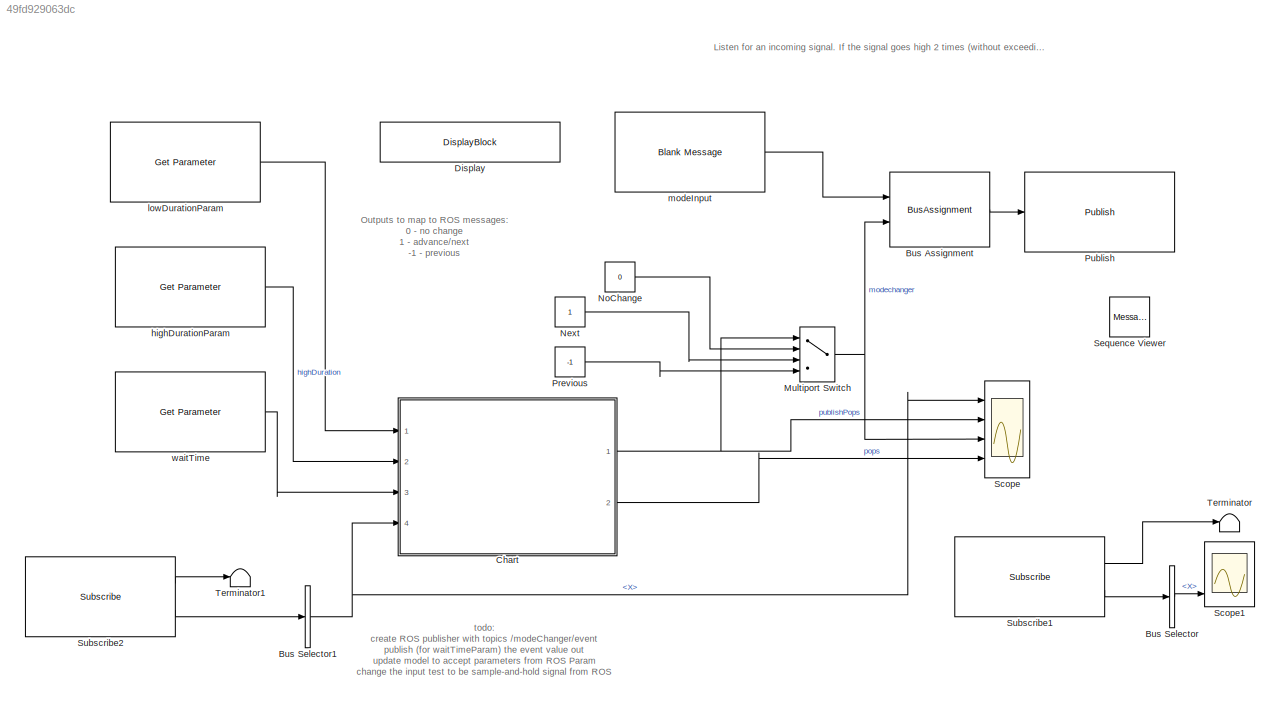
MODEL slx_49fd929063dc
KIND model
CONFIG AbsTol = auto
CONFIG EnableMultiTasking = off
CONFIG FixedStep = 0.01
CONFIG MaxStep = auto
CONFIG MinStep = auto
CONFIG RelTol = 1e-3
CONFIG SampleTimeConstraint = Unconstrained
CONFIG Solver = FixedStepAuto
CONFIG SolverName = FixedStepAuto
CONFIG StartTime = 0.0
CONFIG StopTime = inf
BLOCK [BusAssignment] Bus Assignment
  AssignedSignals = Data
  Ports = [2, 1]
BLOCK [BusSelector] Bus Selector
  Commented = on
  DialogController = Simulink.DDGSource_BusSelector
  OutputSignals = Linear.X
  Ports = [1, 1]
BLOCK [BusSelector] Bus Selector1
  DialogController = Simulink.DDGSource_BusSelector
  OutputSignals = Linear.X
  Ports = [1, 1]
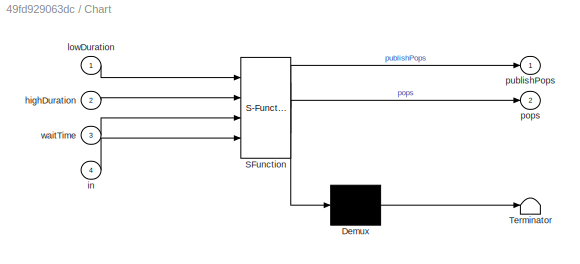
BLOCK [SubSystem] Chart
  ErrorFcn = Stateflow.Translate.translate
  PermitHierarchicalResolution = ExplicitOnly
  Ports = [4, 2]
  RequestExecContextInheritance = off
  SFBlockType = Chart
  TreatAsAtomicUnit = on
BLOCK [Demux] Chart/ Demux 
  Outputs = 1
  Ports = [1, 1]
BLOCK [S-Function] Chart/ SFunction 
  EnableBusSupport = on
  FunctionName = sf_sfun
  PortCounts = [4 3]
  Ports = [4, 3]
  SFcnIsStateOwnerBlock = off
  SFunctionDeploymentMode = off
  Tag = Stateflow S-Function 3
BLOCK [Terminator] Chart/ Terminator 
BLOCK [Inport] Chart/highDuration
  Port = 2
BLOCK [Inport] Chart/in
  Port = 4
BLOCK [Inport] Chart/lowDuration
BLOCK [Outport] Chart/pops
  Port = 2
BLOCK [Outport] Chart/publishPops
BLOCK [Inport] Chart/waitTime
  Port = 3
BLOCK [DisplayBlock] Display
  Commented = on
  Format = short
  LabelPosition = Hide
  Transparency = 1
BLOCK [MultiPortSwitch] Multiport Switch
  DataPortIndices = {0,2,3}
  DataPortOrder = Specify indices
  InputSameDT = off
  Ports = [4, 1]
  SaturateOnIntegerOverflow = off
BLOCK [Constant] Next
  OutDataTypeStr = int8
BLOCK [Constant] NoChange
  OutDataTypeStr = int8
  Value = 0
BLOCK [Constant] Previous
  OutDataTypeStr = int8
  Value = -1
BLOCK [Reference] Publish  REF=robotlib/Publish
  Ports = [1]
  SourceBlock = robotlib/Publish
  SourceProductBaseCode = RR
  SourceType = ROS Publish
BLOCK [Scope] Scope
  Floating = off
  NumInputPorts = 4
  Ports = [4]
  ScopeSpecificationString = Simulink.scopes.TimeScopeBlockCfg('CurrentConfiguration', extmgr.ConfigurationSet(extmgr.Configuration('Core','General UI',true),extmgr.Configuration('Core','Source UI',true),extmgr.Configuration('Sources','WiredSimulink',true,'DataLoggingVariableName','ScopeData1'),extmgr.Configuration('Visuals','Time Domain',true,'SerializedDisplays',{struct('MinYLimReal','-0.125','MaxYLimReal','1.04577','YLabel...<+3447ch>
BLOCK [Scope] Scope1
  Commented = on
  Floating = off
  NumInputPorts = 4
  Ports = [4]
  ScopeSpecificationString = Simulink.scopes.TimeScopeBlockCfg('CurrentConfiguration', extmgr.ConfigurationSet(extmgr.Configuration('Core','General UI',true),extmgr.Configuration('Core','Source UI',true),extmgr.Configuration('Sources','WiredSimulink',true,'DataLoggingVariableName','ScopeData1'),extmgr.Configuration('Visuals','Time Domain',true,'SerializedDisplays',{struct('MinYLimReal','-1.25','MaxYLimReal','1.25','YLabelReal...<+1505ch>
BLOCK [MessageViewer] Sequence Viewer
  History = 1000
  SavedRootId = #
BLOCK [Reference] Subscribe1  REF=robotlib/Subscribe
  Commented = on
  Ports = [0, 2]
  SourceBlock = robotlib/Subscribe
  SourceProductBaseCode = RR
  SourceType = ROS Subscribe
BLOCK [Reference] Subscribe2  REF=robotlib/Subscribe
  Ports = [0, 2]
  SourceBlock = robotlib/Subscribe
  SourceProductBaseCode = RR
  SourceType = ROS Subscribe
BLOCK [Terminator] Terminator
  Commented = on
BLOCK [Terminator] Terminator1
BLOCK [Reference] highDurationParam  REF=robotlib/Get Parameter
  Ports = [0, 1]
  SourceBlock = robotlib/Get Parameter
  SourceProductBaseCode = RR
  SourceType = ROS Get Parameter
BLOCK [Reference] lowDurationParam  REF=robotlib/Get Parameter
  Ports = [0, 1]
  SourceBlock = robotlib/Get Parameter
  SourceProductBaseCode = RR
  SourceType = ROS Get Parameter
BLOCK [Reference] modeInput  REF=robotlib/Blank Message
  Ports = [0, 1]
  SourceBlock = robotlib/Blank Message
  SourceProductBaseCode = RR
  SourceType = ROS Blank Message
BLOCK [Reference] waitTime  REF=robotlib/Get Parameter
  Ports = [0, 1]
  SourceBlock = robotlib/Get Parameter
  SourceProductBaseCode = RR
  SourceType = ROS Get Parameter
ANNOTATION (root): Outputs to map to ROS messages: 0 - no change 1 - advance/next -1 - previous
ANNOTATION (root): todo: create ROS publisher with topics /modeChanger/event publish (for waitTimeParam) the event value out update model to accept parameters from ROS Param change the input test to be sample-and-hold signal from ROS
ANNOTATION (root): Listen for an incoming signal. If the signal goes high 2 times (without exceeding the waitTime in low mode), send "Skip" message. If the signal goes high 3 times (without exceeding the wait time in both low modes), send the "Previous" message. If the signal goes high 1 or 4+ times, ignore.
LINE Bus Assignment:1 -> Publish:1
NET Bus Selector1:1 -> Chart:4, Scope:1
LINE Bus Selector:1 -> Scope1:4
NET Chart:1 -> Multiport Switch:1, Scope:2
LINE Chart:2 -> Scope:4
NET Multiport Switch:1 -> Bus Assignment:2, Scope:3
LINE Next:1 -> Multiport Switch:3
LINE NoChange:1 -> Multiport Switch:2
LINE Previous:1 -> Multiport Switch:4
LINE Subscribe1:1 -> Terminator:1
LINE Subscribe1:2 -> Bus Selector:1
LINE Subscribe2:1 -> Terminator1:1
LINE Subscribe2:2 -> Bus Selector1:1
LINE highDurationParam:1 -> Chart:2
LINE lowDurationParam:1 -> Chart:1
LINE modeInput:1 -> Bus Assignment:1
LINE waitTime:1 -> Chart:3
note: NET lines group one-source signal fan-out (src -> all destinations, sorted); 1:1 wires keep LINE
CHART Chart states=8 transitions=14
  STATE_LABEL 'ResetPops\nentry: pops=0;'
  STATE_LABEL 'Reset'
  STATE_LABEL 'idle'
  STATE_LABEL 'HeldIn'
  STATE_LABEL 'initialize\nentry: pops=0'
  STATE_LABEL 'High\n'
  STATE_LABEL 'Pop\nentry: pops=pops+1;'
  STATE_LABEL 'Debounce'
CHART  states=0 transitions=0
